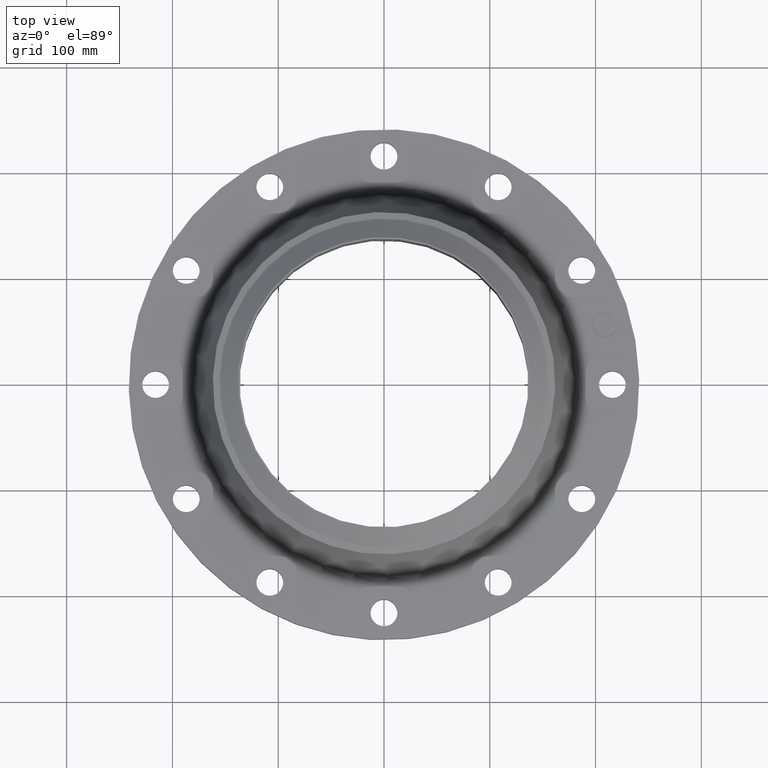
[diagram: clean part render]
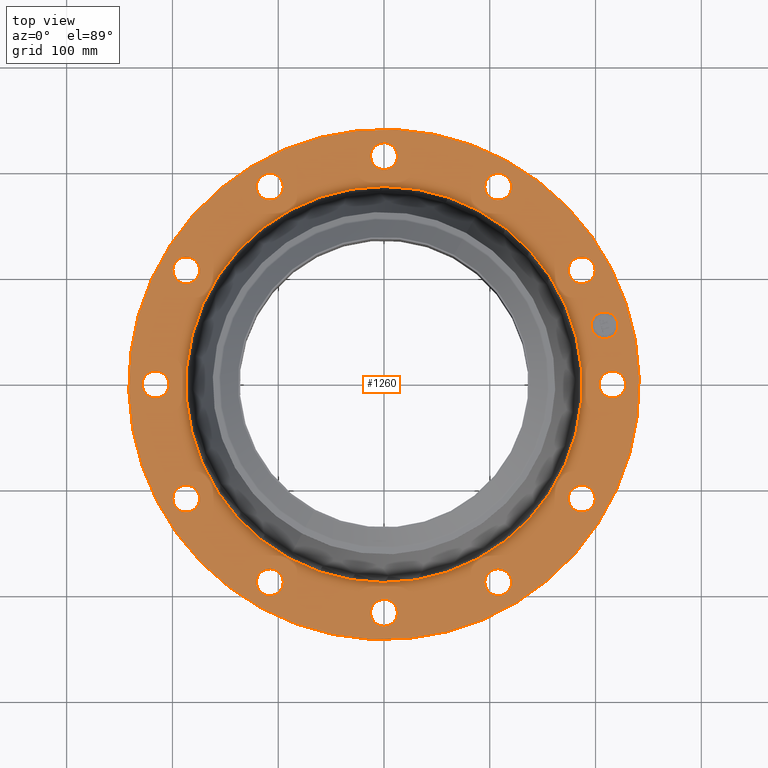
[diagram: same view with one face highlighted and labeled with its STEP entity id]
A machine part, top view. The second image highlights one B-rep face of the part: STEP entity #1260.
In plain terms, the highlighted planar face has unit normal (0, 0, -1).
Its self-contained STEP definition (entity closure, byte-faithful):
#65=AXIS2_PLACEMENT_3D('Circle Axis2P3D',#63,#64,$) ;
#82=AXIS2_PLACEMENT_3D('Circle Axis2P3D',#80,#81,$) ;
#115=AXIS2_PLACEMENT_3D('Circle Axis2P3D',#113,#114,$) ;
#139=AXIS2_PLACEMENT_3D('Circle Axis2P3D',#137,#138,$) ;
#156=AXIS2_PLACEMENT_3D('Circle Axis2P3D',#154,#155,$) ;
#191=AXIS2_PLACEMENT_3D('Circle Axis2P3D',#189,#190,$) ;
#729=AXIS2_PLACEMENT_3D('Circle Axis2P3D',#727,#728,$) ;
#741=AXIS2_PLACEMENT_3D('Circle Axis2P3D',#739,#740,$) ;
#772=AXIS2_PLACEMENT_3D('Circle Axis2P3D',#770,#771,$) ;
#784=AXIS2_PLACEMENT_3D('Circle Axis2P3D',#782,#783,$) ;
#815=AXIS2_PLACEMENT_3D('Circle Axis2P3D',#813,#814,$) ;
#827=AXIS2_PLACEMENT_3D('Circle Axis2P3D',#825,#826,$) ;
#858=AXIS2_PLACEMENT_3D('Circle Axis2P3D',#856,#857,$) ;
#870=AXIS2_PLACEMENT_3D('Circle Axis2P3D',#868,#869,$) ;
#901=AXIS2_PLACEMENT_3D('Circle Axis2P3D',#899,#900,$) ;
#913=AXIS2_PLACEMENT_3D('Circle Axis2P3D',#911,#912,$) ;
#944=AXIS2_PLACEMENT_3D('Circle Axis2P3D',#942,#943,$) ;
#956=AXIS2_PLACEMENT_3D('Circle Axis2P3D',#954,#955,$) ;
#987=AXIS2_PLACEMENT_3D('Circle Axis2P3D',#985,#986,$) ;
#999=AXIS2_PLACEMENT_3D('Circle Axis2P3D',#997,#998,$) ;
#1030=AXIS2_PLACEMENT_3D('Circle Axis2P3D',#1028,#1029,$) ;
#1042=AXIS2_PLACEMENT_3D('Circle Axis2P3D',#1040,#1041,$) ;
#1073=AXIS2_PLACEMENT_3D('Circle Axis2P3D',#1071,#1072,$) ;
#1085=AXIS2_PLACEMENT_3D('Circle Axis2P3D',#1083,#1084,$) ;
#1116=AXIS2_PLACEMENT_3D('Circle Axis2P3D',#1114,#1115,$) ;
#1128=AXIS2_PLACEMENT_3D('Circle Axis2P3D',#1126,#1127,$) ;
#1159=AXIS2_PLACEMENT_3D('Circle Axis2P3D',#1157,#1158,$) ;
#1171=AXIS2_PLACEMENT_3D('Circle Axis2P3D',#1169,#1170,$) ;
#1184=AXIS2_PLACEMENT_3D('Plane Axis2P3D',#1181,#1182,#1183) ;
#1244=AXIS2_PLACEMENT_3D('Circle Axis2P3D',#1242,#1243,$) ;
#1253=AXIS2_PLACEMENT_3D('Circle Axis2P3D',#1251,#1252,$) ;
#46=CARTESIAN_POINT('Vertex',(8.06120871909,0.239712769303,1.25000000001)) ;
#60=CARTESIAN_POINT('Vertex',(8.93879128098,-0.239712769303,1.25000000001)) ;
#63=CARTESIAN_POINT('Axis2P3D Location',(8.50000000003,0.,1.25000000001)) ;
#80=CARTESIAN_POINT('Axis2P3D Location',(8.50000000003,0.,1.25000000001)) ;
#110=CARTESIAN_POINT('Vertex',(-4.55454261676,-8.33703433799,1.25000000001)) ;
#113=CARTESIAN_POINT('Axis2P3D Location',(0.,0.,1.25000000001)) ;
#117=CARTESIAN_POINT('Vertex',(4.55454261676,8.33703433799,1.25000000001)) ;
#137=CARTESIAN_POINT('Axis2P3D Location',(0.,0.,1.25000000001)) ;
#154=CARTESIAN_POINT('Axis2P3D Location',(0.,0.,1.25000000001)) ;
#158=CARTESIAN_POINT('Vertex',(3.53342546152,6.4678919229,1.25000000001)) ;
#160=CARTESIAN_POINT('Vertex',(-3.53342546152,-6.4678919229,1.25000000001)) ;
#189=CARTESIAN_POINT('Axis2P3D Location',(0.,0.,1.25000000001)) ;
#717=CARTESIAN_POINT('Vertex',(-7.10106792059,3.82300701172,1.25000000001)) ;
#724=CARTESIAN_POINT('Vertex',(-7.6213639438,4.67699298832,1.25000000001)) ;
#727=CARTESIAN_POINT('Axis2P3D Location',(-7.3612159322,4.25000000002,1.25000000001)) ;
#739=CARTESIAN_POINT('Axis2P3D Location',(-7.3612159322,4.25000000002,1.25000000001)) ;
#760=CARTESIAN_POINT('Vertex',(4.23820170737,-6.86135515129,1.25000000001)) ;
#767=CARTESIAN_POINT('Vertex',(4.26179829266,-7.86107671311,1.25000000001)) ;
#770=CARTESIAN_POINT('Axis2P3D Location',(4.25000000002,-7.3612159322,1.25000000001)) ;
#782=CARTESIAN_POINT('Axis2P3D Location',(4.25000000002,-7.3612159322,1.25000000001)) ;
#803=CARTESIAN_POINT('Vertex',(-4.23820170737,6.86135515129,1.25000000001)) ;
#810=CARTESIAN_POINT('Vertex',(-4.26179829266,7.86107671311,1.25000000001)) ;
#813=CARTESIAN_POINT('Axis2P3D Location',(-4.25000000002,7.3612159322,1.25000000001)) ;
#825=CARTESIAN_POINT('Axis2P3D Location',(-4.25000000002,7.3612159322,1.25000000001)) ;
#846=CARTESIAN_POINT('Vertex',(0.239712769303,-8.06120871909,1.25000000001)) ;
#853=CARTESIAN_POINT('Vertex',(-0.239712769303,-8.93879128098,1.25000000001)) ;
#856=CARTESIAN_POINT('Axis2P3D Location',(-5.98490048565E-016,-8.50000000003,1.25000000001)) ;
#868=CARTESIAN_POINT('Axis2P3D Location',(-5.98490048565E-016,-8.50000000003,1.25000000001)) ;
#889=CARTESIAN_POINT('Vertex',(-0.239712769303,8.06120871909,1.25000000001)) ;
#896=CARTESIAN_POINT('Vertex',(0.239712769303,8.93879128098,1.25000000001)) ;
#899=CARTESIAN_POINT('Axis2P3D Location',(-4.42459730714E-016,8.50000000003,1.25000000001)) ;
#911=CARTESIAN_POINT('Axis2P3D Location',(-4.42459730714E-016,8.50000000003,1.25000000001)) ;
#932=CARTESIAN_POINT('Vertex',(-3.82300701172,-7.10106792059,1.25000000001)) ;
#939=CARTESIAN_POINT('Vertex',(-4.67699298832,-7.6213639438,1.25000000001)) ;
#942=CARTESIAN_POINT('Axis2P3D Location',(-4.25000000002,-7.3612159322,1.25000000001)) ;
#954=CARTESIAN_POINT('Axis2P3D Location',(-4.25000000002,-7.3612159322,1.25000000001)) ;
#975=CARTESIAN_POINT('Vertex',(3.82300701172,7.10106792059,1.25000000001)) ;
#982=CARTESIAN_POINT('Vertex',(4.67699298832,7.6213639438,1.25000000001)) ;
#985=CARTESIAN_POINT('Axis2P3D Location',(4.25000000002,7.3612159322,1.25000000001)) ;
#997=CARTESIAN_POINT('Axis2P3D Location',(4.25000000002,7.3612159322,1.25000000001)) ;
#1018=CARTESIAN_POINT('Vertex',(-6.86135515129,-4.23820170737,1.25000000001)) ;
#1025=CARTESIAN_POINT('Vertex',(-7.86107671311,-4.26179829266,1.25000000001)) ;
#1028=CARTESIAN_POINT('Axis2P3D Location',(-7.3612159322,-4.25000000002,1.25000000001)) ;
#1040=CARTESIAN_POINT('Axis2P3D Location',(-7.3612159322,-4.25000000002,1.25000000001)) ;
#1061=CARTESIAN_POINT('Vertex',(6.86135515129,4.23820170737,1.25000000001)) ;
#1068=CARTESIAN_POINT('Vertex',(7.86107671311,4.26179829266,1.25000000001)) ;
#1071=CARTESIAN_POINT('Axis2P3D Location',(7.3612159322,4.25000000002,1.25000000001)) ;
#1083=CARTESIAN_POINT('Axis2P3D Location',(7.3612159322,4.25000000002,1.25000000001)) ;
#1104=CARTESIAN_POINT('Vertex',(-8.06120871909,-0.239712769303,1.25000000001)) ;
#1111=CARTESIAN_POINT('Vertex',(-8.93879128098,0.239712769303,1.25000000001)) ;
#1114=CARTESIAN_POINT('Axis2P3D Location',(-8.50000000003,-1.04094977928E-015,1.25000000001)) ;
#1126=CARTESIAN_POINT('Axis2P3D Location',(-8.50000000003,-1.04094977928E-015,1.25000000001)) ;
#1147=CARTESIAN_POINT('Vertex',(7.10106792059,-3.82300701172,1.25000000001)) ;
#1154=CARTESIAN_POINT('Vertex',(7.6213639438,-4.67699298832,1.25000000001)) ;
#1157=CARTESIAN_POINT('Axis2P3D Location',(7.3612159322,-4.25000000002,1.25000000001)) ;
#1169=CARTESIAN_POINT('Axis2P3D Location',(7.3612159322,-4.25000000002,1.25000000001)) ;
#1181=CARTESIAN_POINT('Axis2P3D Location',(0.,9.50000000004,1.25000000001)) ;
#1242=CARTESIAN_POINT('Axis2P3D Location',(8.21036952349,2.19996188338,1.25000000001)) ;
#1246=CARTESIAN_POINT('Vertex',(8.08096029755,2.68292368957,1.25000000001)) ;
#1248=CARTESIAN_POINT('Vertex',(8.33977874943,1.71700007719,1.25000000001)) ;
#1251=CARTESIAN_POINT('Axis2P3D Location',(8.21036952349,2.19996188338,1.25000000001)) ;
#64=DIRECTION('Axis2P3D Direction',(0.,-0.,-0.0393700787402)) ;
#81=DIRECTION('Axis2P3D Direction',(0.,-0.,-0.0393700787402)) ;
#114=DIRECTION('Axis2P3D Direction',(0.,0.,-0.0393700787402)) ;
#138=DIRECTION('Axis2P3D Direction',(0.,0.,-0.0393700787402)) ;
#155=DIRECTION('Axis2P3D Direction',(0.,0.,-0.0393700787402)) ;
#190=DIRECTION('Axis2P3D Direction',(0.,0.,-0.0393700787402)) ;
#728=DIRECTION('Axis2P3D Direction',(0.,0.,-0.0393700787402)) ;
#740=DIRECTION('Axis2P3D Direction',(0.,0.,-0.0393700787402)) ;
#771=DIRECTION('Axis2P3D Direction',(0.,-0.,-0.0393700787402)) ;
#783=DIRECTION('Axis2P3D Direction',(0.,-0.,-0.0393700787402)) ;
#814=DIRECTION('Axis2P3D Direction',(0.,0.,-0.0393700787402)) ;
#826=DIRECTION('Axis2P3D Direction',(0.,0.,-0.0393700787402)) ;
#857=DIRECTION('Axis2P3D Direction',(0.,-0.,-0.0393700787402)) ;
#869=DIRECTION('Axis2P3D Direction',(0.,-0.,-0.0393700787402)) ;
#900=DIRECTION('Axis2P3D Direction',(0.,0.,-0.0393700787402)) ;
#912=DIRECTION('Axis2P3D Direction',(0.,0.,-0.0393700787402)) ;
#943=DIRECTION('Axis2P3D Direction',(-0.,0.,-0.0393700787402)) ;
#955=DIRECTION('Axis2P3D Direction',(-0.,0.,-0.0393700787402)) ;
#986=DIRECTION('Axis2P3D Direction',(0.,0.,-0.0393700787402)) ;
#998=DIRECTION('Axis2P3D Direction',(0.,0.,-0.0393700787402)) ;
#1029=DIRECTION('Axis2P3D Direction',(-0.,0.,-0.0393700787402)) ;
#1041=DIRECTION('Axis2P3D Direction',(-0.,0.,-0.0393700787402)) ;
#1072=DIRECTION('Axis2P3D Direction',(0.,0.,-0.0393700787402)) ;
#1084=DIRECTION('Axis2P3D Direction',(0.,0.,-0.0393700787402)) ;
#1115=DIRECTION('Axis2P3D Direction',(-0.,0.,-0.0393700787402)) ;
#1127=DIRECTION('Axis2P3D Direction',(-0.,0.,-0.0393700787402)) ;
#1158=DIRECTION('Axis2P3D Direction',(0.,-0.,-0.0393700787402)) ;
#1170=DIRECTION('Axis2P3D Direction',(0.,-0.,-0.0393700787402)) ;
#1182=DIRECTION('Axis2P3D Direction',(0.,0.,-0.0393700787402)) ;
#1183=DIRECTION('Axis2P3D XDirection',(0.0393700787402,0.,0.)) ;
#1243=DIRECTION('Axis2P3D Direction',(0.,0.,-0.0393700787402)) ;
#1252=DIRECTION('Axis2P3D Direction',(0.,0.,-0.0393700787402)) ;
#1187=ORIENTED_EDGE('',*,*,#141,.F.) ;
#1188=ORIENTED_EDGE('',*,*,#119,.F.) ;
#1191=ORIENTED_EDGE('',*,*,#67,.T.) ;
#1192=ORIENTED_EDGE('',*,*,#84,.T.) ;
#1195=ORIENTED_EDGE('',*,*,#193,.T.) ;
#1196=ORIENTED_EDGE('',*,*,#162,.T.) ;
#1199=ORIENTED_EDGE('',*,*,#1173,.T.) ;
#1200=ORIENTED_EDGE('',*,*,#1161,.T.) ;
#1203=ORIENTED_EDGE('',*,*,#786,.T.) ;
#1204=ORIENTED_EDGE('',*,*,#774,.T.) ;
#1207=ORIENTED_EDGE('',*,*,#872,.T.) ;
#1208=ORIENTED_EDGE('',*,*,#860,.T.) ;
#1211=ORIENTED_EDGE('',*,*,#958,.T.) ;
#1212=ORIENTED_EDGE('',*,*,#946,.T.) ;
#1215=ORIENTED_EDGE('',*,*,#1044,.T.) ;
#1216=ORIENTED_EDGE('',*,*,#1032,.T.) ;
#1219=ORIENTED_EDGE('',*,*,#1130,.T.) ;
#1220=ORIENTED_EDGE('',*,*,#1118,.T.) ;
#1223=ORIENTED_EDGE('',*,*,#743,.T.) ;
#1224=ORIENTED_EDGE('',*,*,#731,.T.) ;
#1227=ORIENTED_EDGE('',*,*,#829,.T.) ;
#1228=ORIENTED_EDGE('',*,*,#817,.T.) ;
#1231=ORIENTED_EDGE('',*,*,#915,.T.) ;
#1232=ORIENTED_EDGE('',*,*,#903,.T.) ;
#1235=ORIENTED_EDGE('',*,*,#1001,.T.) ;
#1236=ORIENTED_EDGE('',*,*,#989,.T.) ;
#1239=ORIENTED_EDGE('',*,*,#1087,.T.) ;
#1240=ORIENTED_EDGE('',*,*,#1075,.T.) ;
#1257=ORIENTED_EDGE('',*,*,#1250,.T.) ;
#1258=ORIENTED_EDGE('',*,*,#1255,.T.) ;
#1193=FACE_BOUND('',#1190,.T.) ;
#1197=FACE_BOUND('',#1194,.T.) ;
#1201=FACE_BOUND('',#1198,.T.) ;
#1205=FACE_BOUND('',#1202,.T.) ;
#1209=FACE_BOUND('',#1206,.T.) ;
#1213=FACE_BOUND('',#1210,.T.) ;
#1217=FACE_BOUND('',#1214,.T.) ;
#1221=FACE_BOUND('',#1218,.T.) ;
#1225=FACE_BOUND('',#1222,.T.) ;
#1229=FACE_BOUND('',#1226,.T.) ;
#1233=FACE_BOUND('',#1230,.T.) ;
#1237=FACE_BOUND('',#1234,.T.) ;
#1241=FACE_BOUND('',#1238,.T.) ;
#1259=FACE_BOUND('',#1256,.T.) ;
#1260=ADVANCED_FACE('PartBody',(#1189,#1193,#1197,#1201,#1205,#1209,#1213,#1217,#1221,#1225,#1229,#1233,#1237,#1241,#1259),#1185,.F.) ;
#66=CIRCLE('generated circle',#65,0.500000000002) ;
#83=CIRCLE('generated circle',#82,0.500000000002) ;
#116=CIRCLE('generated circle',#115,9.50000000004) ;
#140=CIRCLE('generated circle',#139,9.50000000004) ;
#157=CIRCLE('generated circle',#156,7.37012356873) ;
#192=CIRCLE('generated circle',#191,7.37012356873) ;
#730=CIRCLE('generated circle',#729,0.500000000002) ;
#742=CIRCLE('generated circle',#741,0.500000000002) ;
#773=CIRCLE('generated circle',#772,0.500000000002) ;
#785=CIRCLE('generated circle',#784,0.500000000002) ;
#816=CIRCLE('generated circle',#815,0.500000000002) ;
#828=CIRCLE('generated circle',#827,0.500000000002) ;
#859=CIRCLE('generated circle',#858,0.500000000002) ;
#871=CIRCLE('generated circle',#870,0.500000000002) ;
#902=CIRCLE('generated circle',#901,0.500000000002) ;
#914=CIRCLE('generated circle',#913,0.500000000002) ;
#945=CIRCLE('generated circle',#944,0.500000000002) ;
#957=CIRCLE('generated circle',#956,0.500000000002) ;
#988=CIRCLE('generated circle',#987,0.500000000002) ;
#1000=CIRCLE('generated circle',#999,0.500000000002) ;
#1031=CIRCLE('generated circle',#1030,0.500000000002) ;
#1043=CIRCLE('generated circle',#1042,0.500000000002) ;
#1074=CIRCLE('generated circle',#1073,0.500000000002) ;
#1086=CIRCLE('generated circle',#1085,0.500000000002) ;
#1117=CIRCLE('generated circle',#1116,0.500000000002) ;
#1129=CIRCLE('generated circle',#1128,0.500000000002) ;
#1160=CIRCLE('generated circle',#1159,0.500000000002) ;
#1172=CIRCLE('generated circle',#1171,0.500000000002) ;
#1245=CIRCLE('generated circle',#1244,0.499998853999) ;
#1254=CIRCLE('generated circle',#1253,0.499998853999) ;
#67=EDGE_CURVE('',#47,#61,#66,.T.) ;
#84=EDGE_CURVE('',#61,#47,#83,.T.) ;
#119=EDGE_CURVE('',#111,#118,#116,.T.) ;
#141=EDGE_CURVE('',#118,#111,#140,.T.) ;
#162=EDGE_CURVE('',#159,#161,#157,.T.) ;
#193=EDGE_CURVE('',#161,#159,#192,.T.) ;
#731=EDGE_CURVE('',#718,#725,#730,.T.) ;
#743=EDGE_CURVE('',#725,#718,#742,.T.) ;
#774=EDGE_CURVE('',#761,#768,#773,.T.) ;
#786=EDGE_CURVE('',#768,#761,#785,.T.) ;
#817=EDGE_CURVE('',#804,#811,#816,.T.) ;
#829=EDGE_CURVE('',#811,#804,#828,.T.) ;
#860=EDGE_CURVE('',#847,#854,#859,.T.) ;
#872=EDGE_CURVE('',#854,#847,#871,.T.) ;
#903=EDGE_CURVE('',#890,#897,#902,.T.) ;
#915=EDGE_CURVE('',#897,#890,#914,.T.) ;
#946=EDGE_CURVE('',#933,#940,#945,.T.) ;
#958=EDGE_CURVE('',#940,#933,#957,.T.) ;
#989=EDGE_CURVE('',#976,#983,#988,.T.) ;
#1001=EDGE_CURVE('',#983,#976,#1000,.T.) ;
#1032=EDGE_CURVE('',#1019,#1026,#1031,.T.) ;
#1044=EDGE_CURVE('',#1026,#1019,#1043,.T.) ;
#1075=EDGE_CURVE('',#1062,#1069,#1074,.T.) ;
#1087=EDGE_CURVE('',#1069,#1062,#1086,.T.) ;
#1118=EDGE_CURVE('',#1105,#1112,#1117,.T.) ;
#1130=EDGE_CURVE('',#1112,#1105,#1129,.T.) ;
#1161=EDGE_CURVE('',#1148,#1155,#1160,.T.) ;
#1173=EDGE_CURVE('',#1155,#1148,#1172,.T.) ;
#1250=EDGE_CURVE('',#1247,#1249,#1245,.T.) ;
#1255=EDGE_CURVE('',#1249,#1247,#1254,.T.) ;
#1186=EDGE_LOOP('',(#1187,#1188)) ;
#1190=EDGE_LOOP('',(#1191,#1192)) ;
#1194=EDGE_LOOP('',(#1195,#1196)) ;
#1198=EDGE_LOOP('',(#1199,#1200)) ;
#1202=EDGE_LOOP('',(#1203,#1204)) ;
#1206=EDGE_LOOP('',(#1207,#1208)) ;
#1210=EDGE_LOOP('',(#1211,#1212)) ;
#1214=EDGE_LOOP('',(#1215,#1216)) ;
#1218=EDGE_LOOP('',(#1219,#1220)) ;
#1222=EDGE_LOOP('',(#1223,#1224)) ;
#1226=EDGE_LOOP('',(#1227,#1228)) ;
#1230=EDGE_LOOP('',(#1231,#1232)) ;
#1234=EDGE_LOOP('',(#1235,#1236)) ;
#1238=EDGE_LOOP('',(#1239,#1240)) ;
#1256=EDGE_LOOP('',(#1257,#1258)) ;
#1189=FACE_OUTER_BOUND('',#1186,.T.) ;
#1185=PLANE('',#1184) ;
#47=VERTEX_POINT('',#46) ;
#61=VERTEX_POINT('',#60) ;
#111=VERTEX_POINT('',#110) ;
#118=VERTEX_POINT('',#117) ;
#159=VERTEX_POINT('',#158) ;
#161=VERTEX_POINT('',#160) ;
#718=VERTEX_POINT('',#717) ;
#725=VERTEX_POINT('',#724) ;
#761=VERTEX_POINT('',#760) ;
#768=VERTEX_POINT('',#767) ;
#804=VERTEX_POINT('',#803) ;
#811=VERTEX_POINT('',#810) ;
#847=VERTEX_POINT('',#846) ;
#854=VERTEX_POINT('',#853) ;
#890=VERTEX_POINT('',#889) ;
#897=VERTEX_POINT('',#896) ;
#933=VERTEX_POINT('',#932) ;
#940=VERTEX_POINT('',#939) ;
#976=VERTEX_POINT('',#975) ;
#983=VERTEX_POINT('',#982) ;
#1019=VERTEX_POINT('',#1018) ;
#1026=VERTEX_POINT('',#1025) ;
#1062=VERTEX_POINT('',#1061) ;
#1069=VERTEX_POINT('',#1068) ;
#1105=VERTEX_POINT('',#1104) ;
#1112=VERTEX_POINT('',#1111) ;
#1148=VERTEX_POINT('',#1147) ;
#1155=VERTEX_POINT('',#1154) ;
#1247=VERTEX_POINT('',#1246) ;
#1249=VERTEX_POINT('',#1248) ;